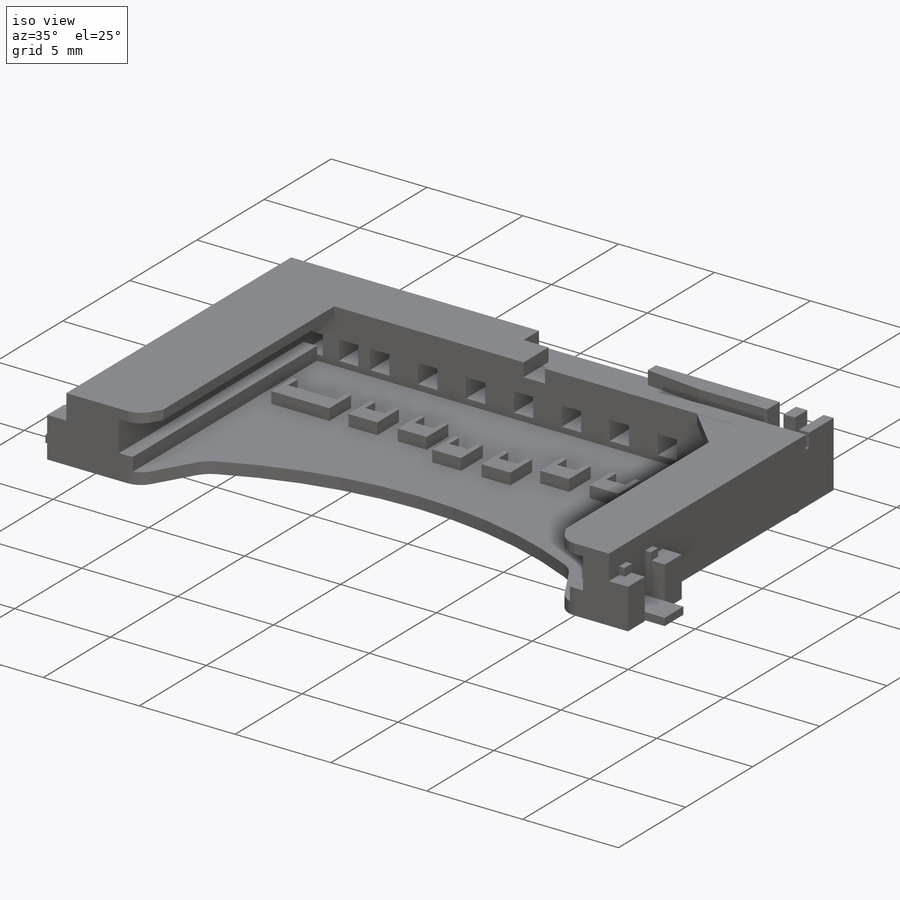
[diagram: iso view]
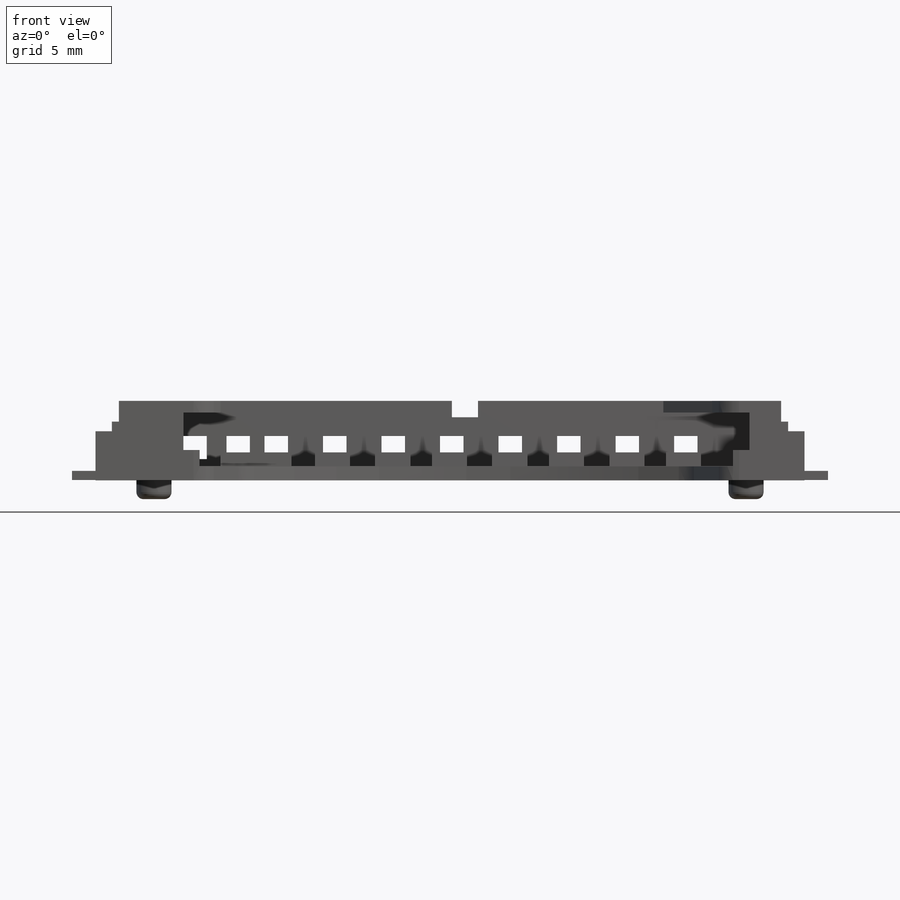
[diagram: front view]
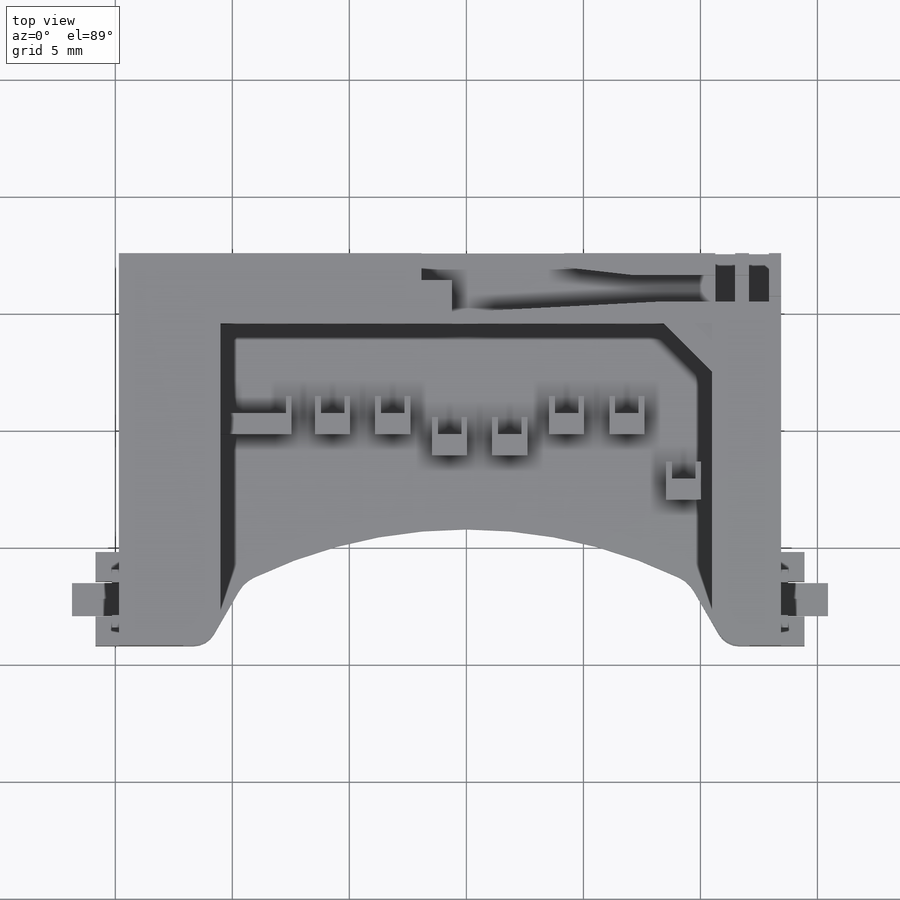
[diagram: top view]
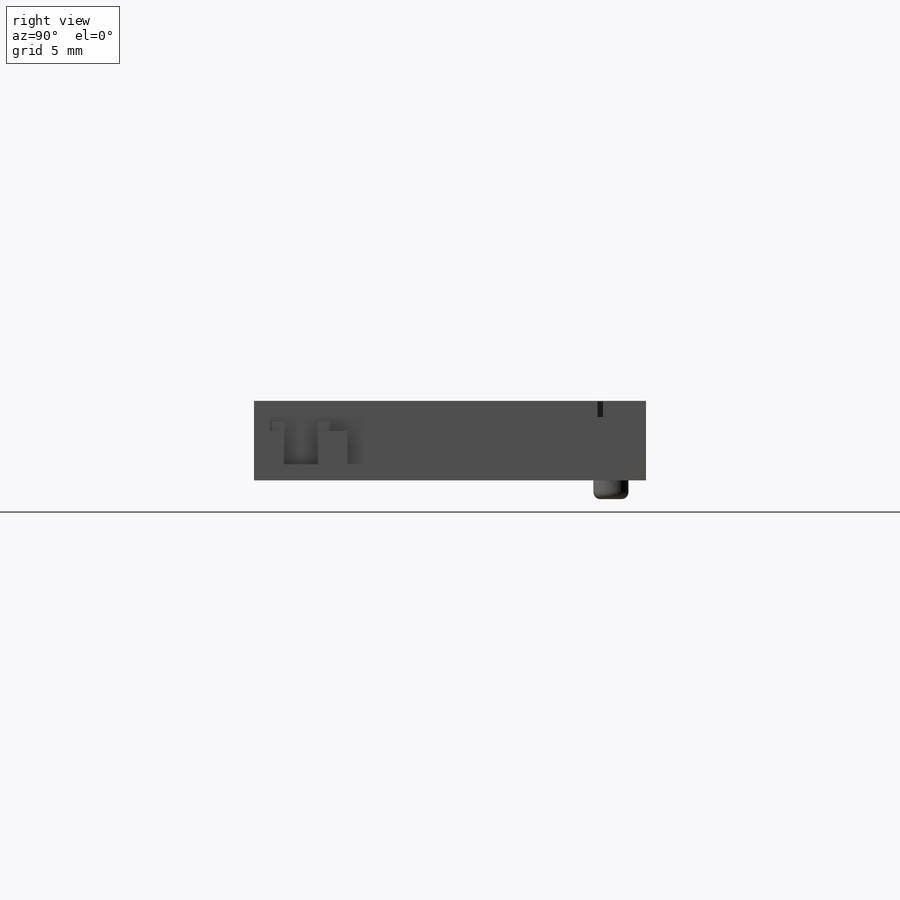
[diagram: right view]
SOLIDWORKS PART (.sldprt)
format: sldprt  version: not decoded by parser v0  size: 866,304 bytes
history: native  units: mm
features: sketch x14, pattern_linear x8, extrude x7, cut_extrude x7, plane x2, mirror x2, material x1, fillet x1 (+12 scaffold rows collapsed)
feature tree (54):
  scaffold x12  (default folders/planes/origin — collapsed)
  material  "Material <not specified>"
  sketch  "Esboço1"  dims[D20=1.0mm D21=1.0mm D22=1.5mm D23=1.5mm D24=21.0mm D1=14.85mm D2=13.45mm D3=16.75mm D4=3.1975mm D5=1.7975mm D6=0.5mm D7=0.866mm D8=0.866mm D9=0.5mm D10=1.834mm D11=1.834mm D12=1.059mm D13=1.059mm D14=0.603mm D15=0.603mm D16=0.651mm D17=0.651mm D18=2.063mm D19=9.0767mm]
  extrude  "Ressalto-extrusão1"  Depth=3.4mm
  sketch  "Esboço2"  dims[D1=3.45mm D2=0.6mm D3=0.7mm D4=22.8mm D5=24.2mm D6=0.7mm D7=1.6mm D8=0.0mm]
  cut_extrude  "Corte-extrusão1"  Depth=13.75mm
  sketch  "Esboço3"  dims[D1=13.75mm D2=21.0mm D3=4.35mm D4=2.08mm D5=2.08mm]
  cut_extrude  "Corte-extrusão2"  Depth=1mm
  sketch  "Esboço4"  dims[D1=2.1mm D2=1.25mm D3=1.5mm D4=1.25mm]
  extrude  "Ressalto-extrusão2"  Depth=1mm
  sketch  "Esboço5"  dims[D1=0.53mm D2=0.41mm D3=0.05mm D4=0.53mm D5=0.05mm]
  extrude  "Ressalto-extrusão3"  Depth=0.3mm
  sketch  "Esboço6"  dims[D1=0.39mm D2=0.02mm]
  extrude  "Ressalto-extrusão4"  Depth=2mm
  plane  "Plano1"
  mirror  "Espelhar1"
  mirror  "Espelhar2"
  sketch  "Esboço7"  dims[c1.D1=1.5mm c1.D2=1.5mm c1.D3=1.5mm c1.D5=1.5mm c2.D2=1.5mm c2.D3=1.5mm c2.D4=1.5mm c2.D5=1.5mm]
  extrude  "Ressalto-extrusão5"  Depth=0.8mm
  fillet  "Filete1"  Radius=0.3mm
  sketch  "Esboço8"  dims[D1=4.7mm D2=1.625mm D3=0.725mm D4=0.25mm D5=0.25mm]
  extrude  "Ressalto-extrusão6"  Depth=0.6mm
  sketch  "Esboço9"  dims[D1=1.5mm D2=1.0mm D3=0.25mm D4=0.25mm]
  extrude  "Ressalto-extrusão7"  Depth=0.6mm
  pattern_linear  "Padrão linear1"  Count1=2 Count2=1 Spacing1=2.571mm Spacing2=10mm
  pattern_linear  "Padrão linear2"  Count1=2 Count2=1 Spacing1=10mm Spacing2=10mm
  pattern_linear  "Padrão linear3"  Count1=2 Count2=2 Spacing1=5mm Spacing2=0.9mm
  pattern_linear  "Padrão linear4"  Count1=2 Count2=2 Spacing1=15mm Spacing2=2.8mm
  sketch  "Esboço10"
  cut_extrude  "Corte-extrusão3"  Depth=0.01mm
  sketch  "Esboço11"  dims[D9=0.3mm D1=12.93mm D2=1.3mm D3=1.115mm D4=6.095mm D5=2.896mm D6=0.33mm D7=5.8536mm D8=0.6mm D10=0.2336mm D11=7.571mm D12=0.3968mm D13=1.15mm]
  cut_extrude  "Corte-extrusão4"  Depth=0.7mm
  sketch  "Esboço12"  dims[D1=0.85mm D2=0.59mm D3=0.85mm]
  cut_extrude  "Corte-extrusão5"  Depth=2.5mm
  plane  "Plano2"
  sketch  "Esboço14"  dims[D1=1.0mm D2=1.0mm D3=6.225mm D4=0.9mm]
  cut_extrude  "Corte-extrusão6"  [1 undecoded]
  pattern_linear  "Padrão linear5"  Count1=8 Count2=1 Spacing1=2.5mm Spacing2=2.8mm
  pattern_linear  "Padrão linear6"  Count1=2 Count2=1 Spacing1=1.625mm Spacing2=2.8mm
  pattern_linear  "Padrão linear7"  Count1=2 Count2=1 Spacing1=3.47mm Spacing2=2.8mm
  pattern_linear  "Padrão linear8"  Count1=2 Count2=1 Spacing1=5.12mm Spacing2=2.8mm
  sketch  "Esboço15"  dims[D1=0.24mm]
  cut_extrude  "Corte-extrusão7"  Depth=0.7mm
decode coverage: 35 of 39 modeling features carry decoded parameters
note: 1 parameter value undecoded
note: suppression state not decoded; provenance and decode notes live in map.json
